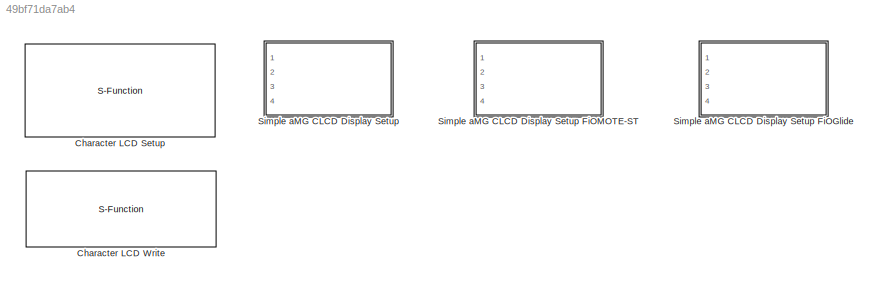
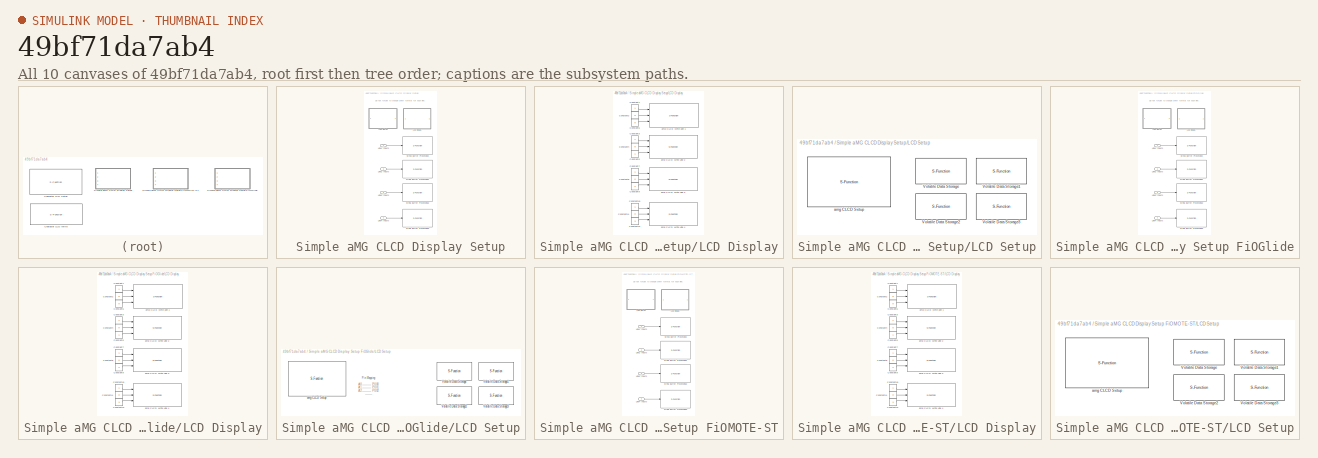
[diagram: thumbnail index - all 10 canvases of the model, root first then tree order]
MODEL slx_49bf71da7ab4
KIND library
CONFIG AbsTol = auto
CONFIG FixedStep = auto
CONFIG MaxStep = auto
CONFIG MinStep = auto
CONFIG RelTol = 1e-3
CONFIG SampleTimeConstraint = Unconstrained
CONFIG Solver = ode3
CONFIG SolverMode = SingleTasking
CONFIG SolverName = ode3
CONFIG StartTime = 0.0
CONFIG StopTime = 10.0
BLOCK [S-Function] Character LCD Setup
  EnableBusSupport = off
  FunctionName = amg_clcd
  Parameters = module,configuration,inputtypearray,outputtypearray,confstr,sampletime,sampletimestr,blockid
  Ports = []
  SFunctionDeploymentMode = off
BLOCK [S-Function] Character LCD Write
  EnableBusSupport = off
  FunctionName = amg_clcd
  Parameters = module,configuration,inputtypearray,outputtypearray,confstr,sampletime,sampletimestr,blockid
  Ports = [4]
  SFunctionDeploymentMode = off
BLOCK [SubSystem] Simple aMG CLCD Display Setup
  CopyFcn = set_param(gcbh, 'LinkStatus', 'none')
  Ports = [4]
  RequestExecContextInheritance = off
  Variant = off
BLOCK [SubSystem] Simple aMG CLCD Display Setup FiOGlide
  CopyFcn = set_param(gcbh, 'LinkStatus', 'none')
  Ports = [4]
  RequestExecContextInheritance = off
  Variant = off
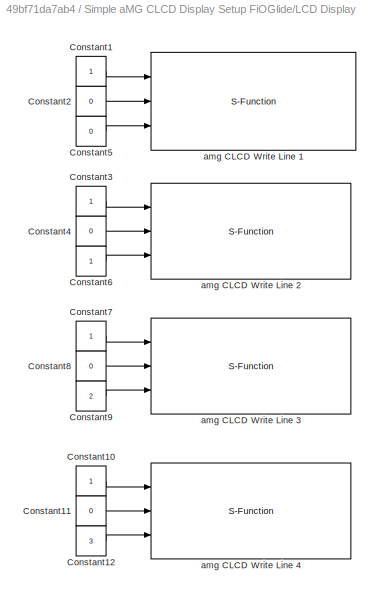
BLOCK [SubSystem] Simple aMG CLCD Display Setup FiOGlide/LCD Display
  Ports = []
  RequestExecContextInheritance = off
  Variant = off
BLOCK [Constant] Simple aMG CLCD Display Setup FiOGlide/LCD Display/Constant1
  OutDataTypeStr = uint8
BLOCK [Constant] Simple aMG CLCD Display Setup FiOGlide/LCD Display/Constant10
  OutDataTypeStr = uint8
BLOCK [Constant] Simple aMG CLCD Display Setup FiOGlide/LCD Display/Constant11
  OutDataTypeStr = uint8
  Value = 0
BLOCK [Constant] Simple aMG CLCD Display Setup FiOGlide/LCD Display/Constant12
  OutDataTypeStr = uint8
  Value = 3
BLOCK [Constant] Simple aMG CLCD Display Setup FiOGlide/LCD Display/Constant2
  OutDataTypeStr = uint8
  Value = 0
BLOCK [Constant] Simple aMG CLCD Display Setup FiOGlide/LCD Display/Constant3
  OutDataTypeStr = uint8
BLOCK [Constant] Simple aMG CLCD Display Setup FiOGlide/LCD Display/Constant4
  OutDataTypeStr = uint8
  Value = 0
BLOCK [Constant] Simple aMG CLCD Display Setup FiOGlide/LCD Display/Constant5
  OutDataTypeStr = uint8
  Value = 0
BLOCK [Constant] Simple aMG CLCD Display Setup FiOGlide/LCD Display/Constant6
  OutDataTypeStr = uint8
BLOCK [Constant] Simple aMG CLCD Display Setup FiOGlide/LCD Display/Constant7
  OutDataTypeStr = uint8
BLOCK [Constant] Simple aMG CLCD Display Setup FiOGlide/LCD Display/Constant8
  OutDataTypeStr = uint8
  Value = 0
BLOCK [Constant] Simple aMG CLCD Display Setup FiOGlide/LCD Display/Constant9
  OutDataTypeStr = uint8
  Value = 2
BLOCK [S-Function] Simple aMG CLCD Display Setup FiOGlide/LCD Display/amg CLCD Write Line 1
  EnableBusSupport = off
  FunctionName = amg_clcd
  Parameters = module,configuration,inputtypearray,outputtypearray,confstr,sampletime,sampletimestr,blockid
  Ports = [3]
  SFunctionDeploymentMode = off
BLOCK [S-Function] Simple aMG CLCD Display Setup FiOGlide/LCD Display/amg CLCD Write Line 2
  EnableBusSupport = off
  FunctionName = amg_clcd
  Parameters = module,configuration,inputtypearray,outputtypearray,confstr,sampletime,sampletimestr,blockid
  Ports = [3]
  SFunctionDeploymentMode = off
BLOCK [S-Function] Simple aMG CLCD Display Setup FiOGlide/LCD Display/amg CLCD Write Line 3
  EnableBusSupport = off
  FunctionName = amg_clcd
  Parameters = module,configuration,inputtypearray,outputtypearray,confstr,sampletime,sampletimestr,blockid
  Ports = [3]
  SFunctionDeploymentMode = off
BLOCK [S-Function] Simple aMG CLCD Display Setup FiOGlide/LCD Display/amg CLCD Write Line 4
  EnableBusSupport = off
  FunctionName = amg_clcd
  Parameters = module,configuration,inputtypearray,outputtypearray,confstr,sampletime,sampletimestr,blockid
  Ports = [3]
  SFunctionDeploymentMode = off
BLOCK [SubSystem] Simple aMG CLCD Display Setup FiOGlide/LCD Setup
  Ports = []
  RequestExecContextInheritance = off
  Variant = off
BLOCK [S-Function] Simple aMG CLCD Display Setup FiOGlide/LCD Setup/Volatile Data Storage
  EnableBusSupport = off
  FunctionName = waijung_vdata_storage
  Parameters = storagetype,storagename,initval,varname,buffersize,initvalstring,sampletime,sampletimestr,blockid,storagetypestr
  Ports = []
  SFunctionDeploymentMode = off
BLOCK [S-Function] Simple aMG CLCD Display Setup FiOGlide/LCD Setup/Volatile Data Storage1
  EnableBusSupport = off
  FunctionName = waijung_vdata_storage
  Parameters = storagetype,storagename,initval,varname,buffersize,initvalstring,sampletime,sampletimestr,blockid,storagetypestr
  Ports = []
  SFunctionDeploymentMode = off
BLOCK [S-Function] Simple aMG CLCD Display Setup FiOGlide/LCD Setup/Volatile Data Storage2
  EnableBusSupport = off
  FunctionName = waijung_vdata_storage
  Parameters = storagetype,storagename,initval,varname,buffersize,initvalstring,sampletime,sampletimestr,blockid,storagetypestr
  Ports = []
  SFunctionDeploymentMode = off
BLOCK [S-Function] Simple aMG CLCD Display Setup FiOGlide/LCD Setup/Volatile Data Storage3
  EnableBusSupport = off
  FunctionName = waijung_vdata_storage
  Parameters = storagetype,storagename,initval,varname,buffersize,initvalstring,sampletime,sampletimestr,blockid,storagetypestr
  Ports = []
  SFunctionDeploymentMode = off
BLOCK [S-Function] Simple aMG CLCD Display Setup FiOGlide/LCD Setup/amg CLCD Setup
  EnableBusSupport = off
  FunctionName = amg_clcd
  Parameters = module,configuration,inputtypearray,outputtypearray,confstr,sampletime,sampletimestr,blockid
  Ports = []
  SFunctionDeploymentMode = off
BLOCK [Inport] Simple aMG CLCD Display Setup FiOGlide/Line1 Inputs
  IconDisplay = Port number
BLOCK [Inport] Simple aMG CLCD Display Setup FiOGlide/Line2 Inputs
  IconDisplay = Port number
  Port = 2
BLOCK [Inport] Simple aMG CLCD Display Setup FiOGlide/Line3 Inputs
  IconDisplay = Port number
  Port = 3
BLOCK [Inport] Simple aMG CLCD Display Setup FiOGlide/Line4 Inputs
  IconDisplay = Port number
  Port = 4
BLOCK [S-Function] Simple aMG CLCD Display Setup FiOGlide/String Buffer Processing
  EnableBusSupport = off
  FunctionName = waijung_stringbuffer_processing
  Parameters = configuration,varname,sformat,porttypes,portcount,inputtypearray,outputtypearray,sampletime,sampletimestr,blockid
  Ports = [1]
  SFunctionDeploymentMode = off
BLOCK [S-Function] Simple aMG CLCD Display Setup FiOGlide/String Buffer Processing1
  EnableBusSupport = off
  FunctionName = waijung_stringbuffer_processing
  Parameters = configuration,varname,sformat,porttypes,portcount,inputtypearray,outputtypearray,sampletime,sampletimestr,blockid
  Ports = [1]
  SFunctionDeploymentMode = off
BLOCK [S-Function] Simple aMG CLCD Display Setup FiOGlide/String Buffer Processing2
  EnableBusSupport = off
  FunctionName = waijung_stringbuffer_processing
  Parameters = configuration,varname,sformat,porttypes,portcount,inputtypearray,outputtypearray,sampletime,sampletimestr,blockid
  Ports = [1]
  SFunctionDeploymentMode = off
BLOCK [S-Function] Simple aMG CLCD Display Setup FiOGlide/String Buffer Processing3
  EnableBusSupport = off
  FunctionName = waijung_stringbuffer_processing
  Parameters = configuration,varname,sformat,porttypes,portcount,inputtypearray,outputtypearray,sampletime,sampletimestr,blockid
  Ports = [1]
  SFunctionDeploymentMode = off
BLOCK [SubSystem] Simple aMG CLCD Display Setup FiOMOTE-ST
  CopyFcn = set_param(gcbh, 'LinkStatus', 'none')
  Ports = [4]
  RequestExecContextInheritance = off
  Variant = off
BLOCK [SubSystem] Simple aMG CLCD Display Setup FiOMOTE-ST/LCD Display
  Ports = []
  RequestExecContextInheritance = off
  Variant = off
BLOCK [Constant] Simple aMG CLCD Display Setup FiOMOTE-ST/LCD Display/Constant1
  OutDataTypeStr = uint8
BLOCK [Constant] Simple aMG CLCD Display Setup FiOMOTE-ST/LCD Display/Constant10
  OutDataTypeStr = uint8
BLOCK [Constant] Simple aMG CLCD Display Setup FiOMOTE-ST/LCD Display/Constant11
  OutDataTypeStr = uint8
  Value = 0
BLOCK [Constant] Simple aMG CLCD Display Setup FiOMOTE-ST/LCD Display/Constant12
  OutDataTypeStr = uint8
  Value = 3
BLOCK [Constant] Simple aMG CLCD Display Setup FiOMOTE-ST/LCD Display/Constant2
  OutDataTypeStr = uint8
  Value = 0
BLOCK [Constant] Simple aMG CLCD Display Setup FiOMOTE-ST/LCD Display/Constant3
  OutDataTypeStr = uint8
BLOCK [Constant] Simple aMG CLCD Display Setup FiOMOTE-ST/LCD Display/Constant4
  OutDataTypeStr = uint8
  Value = 0
BLOCK [Constant] Simple aMG CLCD Display Setup FiOMOTE-ST/LCD Display/Constant5
  OutDataTypeStr = uint8
  Value = 0
BLOCK [Constant] Simple aMG CLCD Display Setup FiOMOTE-ST/LCD Display/Constant6
  OutDataTypeStr = uint8
BLOCK [Constant] Simple aMG CLCD Display Setup FiOMOTE-ST/LCD Display/Constant7
  OutDataTypeStr = uint8
BLOCK [Constant] Simple aMG CLCD Display Setup FiOMOTE-ST/LCD Display/Constant8
  OutDataTypeStr = uint8
  Value = 0
BLOCK [Constant] Simple aMG CLCD Display Setup FiOMOTE-ST/LCD Display/Constant9
  OutDataTypeStr = uint8
  Value = 2
BLOCK [S-Function] Simple aMG CLCD Display Setup FiOMOTE-ST/LCD Display/amg CLCD Write Line 1
  EnableBusSupport = off
  FunctionName = amg_clcd
  Parameters = module,configuration,inputtypearray,outputtypearray,confstr,sampletime,sampletimestr,blockid
  Ports = [3]
  SFunctionDeploymentMode = off
BLOCK [S-Function] Simple aMG CLCD Display Setup FiOMOTE-ST/LCD Display/amg CLCD Write Line 2
  EnableBusSupport = off
  FunctionName = amg_clcd
  Parameters = module,configuration,inputtypearray,outputtypearray,confstr,sampletime,sampletimestr,blockid
  Ports = [3]
  SFunctionDeploymentMode = off
BLOCK [S-Function] Simple aMG CLCD Display Setup FiOMOTE-ST/LCD Display/amg CLCD Write Line 3
  EnableBusSupport = off
  FunctionName = amg_clcd
  Parameters = module,configuration,inputtypearray,outputtypearray,confstr,sampletime,sampletimestr,blockid
  Ports = [3]
  SFunctionDeploymentMode = off
BLOCK [S-Function] Simple aMG CLCD Display Setup FiOMOTE-ST/LCD Display/amg CLCD Write Line 4
  EnableBusSupport = off
  FunctionName = amg_clcd
  Parameters = module,configuration,inputtypearray,outputtypearray,confstr,sampletime,sampletimestr,blockid
  Ports = [3]
  SFunctionDeploymentMode = off
BLOCK [SubSystem] Simple aMG CLCD Display Setup FiOMOTE-ST/LCD Setup
  Ports = []
  RequestExecContextInheritance = off
  Variant = off
BLOCK [S-Function] Simple aMG CLCD Display Setup FiOMOTE-ST/LCD Setup/Volatile Data Storage
  EnableBusSupport = off
  FunctionName = waijung_vdata_storage
  Parameters = storagetype,storagename,initval,varname,buffersize,initvalstring,sampletime,sampletimestr,blockid,storagetypestr
  Ports = []
  SFunctionDeploymentMode = off
BLOCK [S-Function] Simple aMG CLCD Display Setup FiOMOTE-ST/LCD Setup/Volatile Data Storage1
  EnableBusSupport = off
  FunctionName = waijung_vdata_storage
  Parameters = storagetype,storagename,initval,varname,buffersize,initvalstring,sampletime,sampletimestr,blockid,storagetypestr
  Ports = []
  SFunctionDeploymentMode = off
BLOCK [S-Function] Simple aMG CLCD Display Setup FiOMOTE-ST/LCD Setup/Volatile Data Storage2
  EnableBusSupport = off
  FunctionName = waijung_vdata_storage
  Parameters = storagetype,storagename,initval,varname,buffersize,initvalstring,sampletime,sampletimestr,blockid,storagetypestr
  Ports = []
  SFunctionDeploymentMode = off
BLOCK [S-Function] Simple aMG CLCD Display Setup FiOMOTE-ST/LCD Setup/Volatile Data Storage3
  EnableBusSupport = off
  FunctionName = waijung_vdata_storage
  Parameters = storagetype,storagename,initval,varname,buffersize,initvalstring,sampletime,sampletimestr,blockid,storagetypestr
  Ports = []
  SFunctionDeploymentMode = off
BLOCK [S-Function] Simple aMG CLCD Display Setup FiOMOTE-ST/LCD Setup/amg CLCD Setup
  EnableBusSupport = off
  FunctionName = amg_clcd
  Parameters = module,configuration,inputtypearray,outputtypearray,confstr,sampletime,sampletimestr,blockid
  Ports = []
  SFunctionDeploymentMode = off
BLOCK [Inport] Simple aMG CLCD Display Setup FiOMOTE-ST/Line1 Inputs
  IconDisplay = Port number
BLOCK [Inport] Simple aMG CLCD Display Setup FiOMOTE-ST/Line2 Inputs
  IconDisplay = Port number
  Port = 2
BLOCK [Inport] Simple aMG CLCD Display Setup FiOMOTE-ST/Line3 Inputs
  IconDisplay = Port number
  Port = 3
BLOCK [Inport] Simple aMG CLCD Display Setup FiOMOTE-ST/Line4 Inputs
  IconDisplay = Port number
  Port = 4
BLOCK [S-Function] Simple aMG CLCD Display Setup FiOMOTE-ST/String Buffer Processing
  EnableBusSupport = off
  FunctionName = waijung_stringbuffer_processing
  Parameters = configuration,varname,sformat,porttypes,portcount,inputtypearray,outputtypearray,sampletime,sampletimestr,blockid
  Ports = [1]
  SFunctionDeploymentMode = off
BLOCK [S-Function] Simple aMG CLCD Display Setup FiOMOTE-ST/String Buffer Processing1
  EnableBusSupport = off
  FunctionName = waijung_stringbuffer_processing
  Parameters = configuration,varname,sformat,porttypes,portcount,inputtypearray,outputtypearray,sampletime,sampletimestr,blockid
  Ports = [1]
  SFunctionDeploymentMode = off
BLOCK [S-Function] Simple aMG CLCD Display Setup FiOMOTE-ST/String Buffer Processing2
  EnableBusSupport = off
  FunctionName = waijung_stringbuffer_processing
  Parameters = configuration,varname,sformat,porttypes,portcount,inputtypearray,outputtypearray,sampletime,sampletimestr,blockid
  Ports = [1]
  SFunctionDeploymentMode = off
BLOCK [S-Function] Simple aMG CLCD Display Setup FiOMOTE-ST/String Buffer Processing3
  EnableBusSupport = off
  FunctionName = waijung_stringbuffer_processing
  Parameters = configuration,varname,sformat,porttypes,portcount,inputtypearray,outputtypearray,sampletime,sampletimestr,blockid
  Ports = [1]
  SFunctionDeploymentMode = off
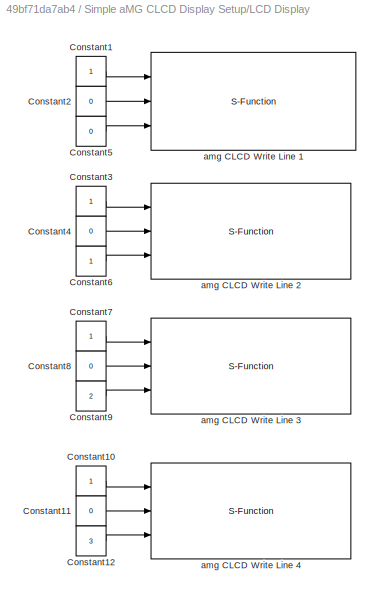
BLOCK [SubSystem] Simple aMG CLCD Display Setup/LCD Display
  Ports = []
  RequestExecContextInheritance = off
  Variant = off
BLOCK [Constant] Simple aMG CLCD Display Setup/LCD Display/Constant1
  OutDataTypeStr = uint8
BLOCK [Constant] Simple aMG CLCD Display Setup/LCD Display/Constant10
  OutDataTypeStr = uint8
BLOCK [Constant] Simple aMG CLCD Display Setup/LCD Display/Constant11
  OutDataTypeStr = uint8
  Value = 0
BLOCK [Constant] Simple aMG CLCD Display Setup/LCD Display/Constant12
  OutDataTypeStr = uint8
  Value = 3
BLOCK [Constant] Simple aMG CLCD Display Setup/LCD Display/Constant2
  OutDataTypeStr = uint8
  Value = 0
BLOCK [Constant] Simple aMG CLCD Display Setup/LCD Display/Constant3
  OutDataTypeStr = uint8
BLOCK [Constant] Simple aMG CLCD Display Setup/LCD Display/Constant4
  OutDataTypeStr = uint8
  Value = 0
BLOCK [Constant] Simple aMG CLCD Display Setup/LCD Display/Constant5
  OutDataTypeStr = uint8
  Value = 0
BLOCK [Constant] Simple aMG CLCD Display Setup/LCD Display/Constant6
  OutDataTypeStr = uint8
BLOCK [Constant] Simple aMG CLCD Display Setup/LCD Display/Constant7
  OutDataTypeStr = uint8
BLOCK [Constant] Simple aMG CLCD Display Setup/LCD Display/Constant8
  OutDataTypeStr = uint8
  Value = 0
BLOCK [Constant] Simple aMG CLCD Display Setup/LCD Display/Constant9
  OutDataTypeStr = uint8
  Value = 2
BLOCK [S-Function] Simple aMG CLCD Display Setup/LCD Display/amg CLCD Write Line 1
  EnableBusSupport = off
  FunctionName = amg_clcd
  Parameters = module,configuration,inputtypearray,outputtypearray,confstr,sampletime,sampletimestr,blockid
  Ports = [3]
  SFunctionDeploymentMode = off
BLOCK [S-Function] Simple aMG CLCD Display Setup/LCD Display/amg CLCD Write Line 2
  EnableBusSupport = off
  FunctionName = amg_clcd
  Parameters = module,configuration,inputtypearray,outputtypearray,confstr,sampletime,sampletimestr,blockid
  Ports = [3]
  SFunctionDeploymentMode = off
BLOCK [S-Function] Simple aMG CLCD Display Setup/LCD Display/amg CLCD Write Line 3
  EnableBusSupport = off
  FunctionName = amg_clcd
  Parameters = module,configuration,inputtypearray,outputtypearray,confstr,sampletime,sampletimestr,blockid
  Ports = [3]
  SFunctionDeploymentMode = off
BLOCK [S-Function] Simple aMG CLCD Display Setup/LCD Display/amg CLCD Write Line 4
  EnableBusSupport = off
  FunctionName = amg_clcd
  Parameters = module,configuration,inputtypearray,outputtypearray,confstr,sampletime,sampletimestr,blockid
  Ports = [3]
  SFunctionDeploymentMode = off
BLOCK [SubSystem] Simple aMG CLCD Display Setup/LCD Setup
  Ports = []
  RequestExecContextInheritance = off
  Variant = off
BLOCK [S-Function] Simple aMG CLCD Display Setup/LCD Setup/Volatile Data Storage
  EnableBusSupport = off
  FunctionName = waijung_vdata_storage
  Parameters = storagetype,storagename,initval,varname,buffersize,initvalstring,sampletime,sampletimestr,blockid,storagetypestr
  Ports = []
  SFunctionDeploymentMode = off
BLOCK [S-Function] Simple aMG CLCD Display Setup/LCD Setup/Volatile Data Storage1
  EnableBusSupport = off
  FunctionName = waijung_vdata_storage
  Parameters = storagetype,storagename,initval,varname,buffersize,initvalstring,sampletime,sampletimestr,blockid,storagetypestr
  Ports = []
  SFunctionDeploymentMode = off
BLOCK [S-Function] Simple aMG CLCD Display Setup/LCD Setup/Volatile Data Storage2
  EnableBusSupport = off
  FunctionName = waijung_vdata_storage
  Parameters = storagetype,storagename,initval,varname,buffersize,initvalstring,sampletime,sampletimestr,blockid,storagetypestr
  Ports = []
  SFunctionDeploymentMode = off
BLOCK [S-Function] Simple aMG CLCD Display Setup/LCD Setup/Volatile Data Storage3
  EnableBusSupport = off
  FunctionName = waijung_vdata_storage
  Parameters = storagetype,storagename,initval,varname,buffersize,initvalstring,sampletime,sampletimestr,blockid,storagetypestr
  Ports = []
  SFunctionDeploymentMode = off
BLOCK [S-Function] Simple aMG CLCD Display Setup/LCD Setup/amg CLCD Setup
  EnableBusSupport = off
  FunctionName = amg_clcd
  Parameters = module,configuration,inputtypearray,outputtypearray,confstr,sampletime,sampletimestr,blockid
  Ports = []
  SFunctionDeploymentMode = off
BLOCK [Inport] Simple aMG CLCD Display Setup/Line1 Inputs
  IconDisplay = Port number
BLOCK [Inport] Simple aMG CLCD Display Setup/Line2 Inputs
  IconDisplay = Port number
  Port = 2
BLOCK [Inport] Simple aMG CLCD Display Setup/Line3 Inputs
  IconDisplay = Port number
  Port = 3
BLOCK [Inport] Simple aMG CLCD Display Setup/Line4 Inputs
  IconDisplay = Port number
  Port = 4
BLOCK [S-Function] Simple aMG CLCD Display Setup/String Buffer Processing
  EnableBusSupport = off
  FunctionName = waijung_stringbuffer_processing
  Parameters = configuration,varname,sformat,porttypes,portcount,inputtypearray,outputtypearray,sampletime,sampletimestr,blockid
  Ports = [1]
  SFunctionDeploymentMode = off
BLOCK [S-Function] Simple aMG CLCD Display Setup/String Buffer Processing1
  EnableBusSupport = off
  FunctionName = waijung_stringbuffer_processing
  Parameters = configuration,varname,sformat,porttypes,portcount,inputtypearray,outputtypearray,sampletime,sampletimestr,blockid
  Ports = [1]
  SFunctionDeploymentMode = off
BLOCK [S-Function] Simple aMG CLCD Display Setup/String Buffer Processing2
  EnableBusSupport = off
  FunctionName = waijung_stringbuffer_processing
  Parameters = configuration,varname,sformat,porttypes,portcount,inputtypearray,outputtypearray,sampletime,sampletimestr,blockid
  Ports = [1]
  SFunctionDeploymentMode = off
BLOCK [S-Function] Simple aMG CLCD Display Setup/String Buffer Processing3
  EnableBusSupport = off
  FunctionName = waijung_stringbuffer_processing
  Parameters = configuration,varname,sformat,porttypes,portcount,inputtypearray,outputtypearray,sampletime,sampletimestr,blockid
  Ports = [1]
  SFunctionDeploymentMode = off
ANNOTATION Simple aMG CLCD Display Setup: Do not forget to change printf format for each line.
ANNOTATION Simple aMG CLCD Display Setup FiOGlide: Do not forget to change printf format for each line.
ANNOTATION Simple aMG CLCD Display Setup FiOGlide/LCD Setup: Pin Mapping: A0 --------- P0.00 A1 --------- P0.01 A2 --------- P0.02 ------- ------ A15 --------- P0.15 B0------------ P0.16 B1------------ P0.17
ANNOTATION Simple aMG CLCD Display Setup FiOMOTE-ST: Do not forget to change printf format for each line.
LINE Simple aMG CLCD Display Setup FiOGlide/LCD Display/Constant10:1 -> Simple aMG CLCD Display Setup FiOGlide/LCD Display/amg CLCD Write Line 4:1
LINE Simple aMG CLCD Display Setup FiOGlide/LCD Display/Constant11:1 -> Simple aMG CLCD Display Setup FiOGlide/LCD Display/amg CLCD Write Line 4:2
LINE Simple aMG CLCD Display Setup FiOGlide/LCD Display/Constant12:1 -> Simple aMG CLCD Display Setup FiOGlide/LCD Display/amg CLCD Write Line 4:3
LINE Simple aMG CLCD Display Setup FiOGlide/LCD Display/Constant1:1 -> Simple aMG CLCD Display Setup FiOGlide/LCD Display/amg CLCD Write Line 1:1
LINE Simple aMG CLCD Display Setup FiOGlide/LCD Display/Constant2:1 -> Simple aMG CLCD Display Setup FiOGlide/LCD Display/amg CLCD Write Line 1:2
LINE Simple aMG CLCD Display Setup FiOGlide/LCD Display/Constant3:1 -> Simple aMG CLCD Display Setup FiOGlide/LCD Display/amg CLCD Write Line 2:1
LINE Simple aMG CLCD Display Setup FiOGlide/LCD Display/Constant4:1 -> Simple aMG CLCD Display Setup FiOGlide/LCD Display/amg CLCD Write Line 2:2
LINE Simple aMG CLCD Display Setup FiOGlide/LCD Display/Constant5:1 -> Simple aMG CLCD Display Setup FiOGlide/LCD Display/amg CLCD Write Line 1:3
LINE Simple aMG CLCD Display Setup FiOGlide/LCD Display/Constant6:1 -> Simple aMG CLCD Display Setup FiOGlide/LCD Display/amg CLCD Write Line 2:3
LINE Simple aMG CLCD Display Setup FiOGlide/LCD Display/Constant7:1 -> Simple aMG CLCD Display Setup FiOGlide/LCD Display/amg CLCD Write Line 3:1
LINE Simple aMG CLCD Display Setup FiOGlide/LCD Display/Constant8:1 -> Simple aMG CLCD Display Setup FiOGlide/LCD Display/amg CLCD Write Line 3:2
LINE Simple aMG CLCD Display Setup FiOGlide/LCD Display/Constant9:1 -> Simple aMG CLCD Display Setup FiOGlide/LCD Display/amg CLCD Write Line 3:3
LINE Simple aMG CLCD Display Setup FiOGlide/Line1 Inputs:1 -> Simple aMG CLCD Display Setup FiOGlide/String Buffer Processing:1
LINE Simple aMG CLCD Display Setup FiOGlide/Line2 Inputs:1 -> Simple aMG CLCD Display Setup FiOGlide/String Buffer Processing1:1
LINE Simple aMG CLCD Display Setup FiOGlide/Line3 Inputs:1 -> Simple aMG CLCD Display Setup FiOGlide/String Buffer Processing2:1
LINE Simple aMG CLCD Display Setup FiOGlide/Line4 Inputs:1 -> Simple aMG CLCD Display Setup FiOGlide/String Buffer Processing3:1
LINE Simple aMG CLCD Display Setup FiOMOTE-ST/LCD Display/Constant10:1 -> Simple aMG CLCD Display Setup FiOMOTE-ST/LCD Display/amg CLCD Write Line 4:1
LINE Simple aMG CLCD Display Setup FiOMOTE-ST/LCD Display/Constant11:1 -> Simple aMG CLCD Display Setup FiOMOTE-ST/LCD Display/amg CLCD Write Line 4:2
LINE Simple aMG CLCD Display Setup FiOMOTE-ST/LCD Display/Constant12:1 -> Simple aMG CLCD Display Setup FiOMOTE-ST/LCD Display/amg CLCD Write Line 4:3
LINE Simple aMG CLCD Display Setup FiOMOTE-ST/LCD Display/Constant1:1 -> Simple aMG CLCD Display Setup FiOMOTE-ST/LCD Display/amg CLCD Write Line 1:1
LINE Simple aMG CLCD Display Setup FiOMOTE-ST/LCD Display/Constant2:1 -> Simple aMG CLCD Display Setup FiOMOTE-ST/LCD Display/amg CLCD Write Line 1:2
LINE Simple aMG CLCD Display Setup FiOMOTE-ST/LCD Display/Constant3:1 -> Simple aMG CLCD Display Setup FiOMOTE-ST/LCD Display/amg CLCD Write Line 2:1
LINE Simple aMG CLCD Display Setup FiOMOTE-ST/LCD Display/Constant4:1 -> Simple aMG CLCD Display Setup FiOMOTE-ST/LCD Display/amg CLCD Write Line 2:2
LINE Simple aMG CLCD Display Setup FiOMOTE-ST/LCD Display/Constant5:1 -> Simple aMG CLCD Display Setup FiOMOTE-ST/LCD Display/amg CLCD Write Line 1:3
LINE Simple aMG CLCD Display Setup FiOMOTE-ST/LCD Display/Constant6:1 -> Simple aMG CLCD Display Setup FiOMOTE-ST/LCD Display/amg CLCD Write Line 2:3
LINE Simple aMG CLCD Display Setup FiOMOTE-ST/LCD Display/Constant7:1 -> Simple aMG CLCD Display Setup FiOMOTE-ST/LCD Display/amg CLCD Write Line 3:1
LINE Simple aMG CLCD Display Setup FiOMOTE-ST/LCD Display/Constant8:1 -> Simple aMG CLCD Display Setup FiOMOTE-ST/LCD Display/amg CLCD Write Line 3:2
LINE Simple aMG CLCD Display Setup FiOMOTE-ST/LCD Display/Constant9:1 -> Simple aMG CLCD Display Setup FiOMOTE-ST/LCD Display/amg CLCD Write Line 3:3
LINE Simple aMG CLCD Display Setup FiOMOTE-ST/Line1 Inputs:1 -> Simple aMG CLCD Display Setup FiOMOTE-ST/String Buffer Processing:1
LINE Simple aMG CLCD Display Setup FiOMOTE-ST/Line2 Inputs:1 -> Simple aMG CLCD Display Setup FiOMOTE-ST/String Buffer Processing1:1
LINE Simple aMG CLCD Display Setup FiOMOTE-ST/Line3 Inputs:1 -> Simple aMG CLCD Display Setup FiOMOTE-ST/String Buffer Processing2:1
LINE Simple aMG CLCD Display Setup FiOMOTE-ST/Line4 Inputs:1 -> Simple aMG CLCD Display Setup FiOMOTE-ST/String Buffer Processing3:1
LINE Simple aMG CLCD Display Setup/LCD Display/Constant10:1 -> Simple aMG CLCD Display Setup/LCD Display/amg CLCD Write Line 4:1
LINE Simple aMG CLCD Display Setup/LCD Display/Constant11:1 -> Simple aMG CLCD Display Setup/LCD Display/amg CLCD Write Line 4:2
LINE Simple aMG CLCD Display Setup/LCD Display/Constant12:1 -> Simple aMG CLCD Display Setup/LCD Display/amg CLCD Write Line 4:3
LINE Simple aMG CLCD Display Setup/LCD Display/Constant1:1 -> Simple aMG CLCD Display Setup/LCD Display/amg CLCD Write Line 1:1
LINE Simple aMG CLCD Display Setup/LCD Display/Constant2:1 -> Simple aMG CLCD Display Setup/LCD Display/amg CLCD Write Line 1:2
LINE Simple aMG CLCD Display Setup/LCD Display/Constant3:1 -> Simple aMG CLCD Display Setup/LCD Display/amg CLCD Write Line 2:1
LINE Simple aMG CLCD Display Setup/LCD Display/Constant4:1 -> Simple aMG CLCD Display Setup/LCD Display/amg CLCD Write Line 2:2
LINE Simple aMG CLCD Display Setup/LCD Display/Constant5:1 -> Simple aMG CLCD Display Setup/LCD Display/amg CLCD Write Line 1:3
LINE Simple aMG CLCD Display Setup/LCD Display/Constant6:1 -> Simple aMG CLCD Display Setup/LCD Display/amg CLCD Write Line 2:3
LINE Simple aMG CLCD Display Setup/LCD Display/Constant7:1 -> Simple aMG CLCD Display Setup/LCD Display/amg CLCD Write Line 3:1
LINE Simple aMG CLCD Display Setup/LCD Display/Constant8:1 -> Simple aMG CLCD Display Setup/LCD Display/amg CLCD Write Line 3:2
LINE Simple aMG CLCD Display Setup/LCD Display/Constant9:1 -> Simple aMG CLCD Display Setup/LCD Display/amg CLCD Write Line 3:3
LINE Simple aMG CLCD Display Setup/Line1 Inputs:1 -> Simple aMG CLCD Display Setup/String Buffer Processing:1
LINE Simple aMG CLCD Display Setup/Line2 Inputs:1 -> Simple aMG CLCD Display Setup/String Buffer Processing1:1
LINE Simple aMG CLCD Display Setup/Line3 Inputs:1 -> Simple aMG CLCD Display Setup/String Buffer Processing2:1
LINE Simple aMG CLCD Display Setup/Line4 Inputs:1 -> Simple aMG CLCD Display Setup/String Buffer Processing3:1
